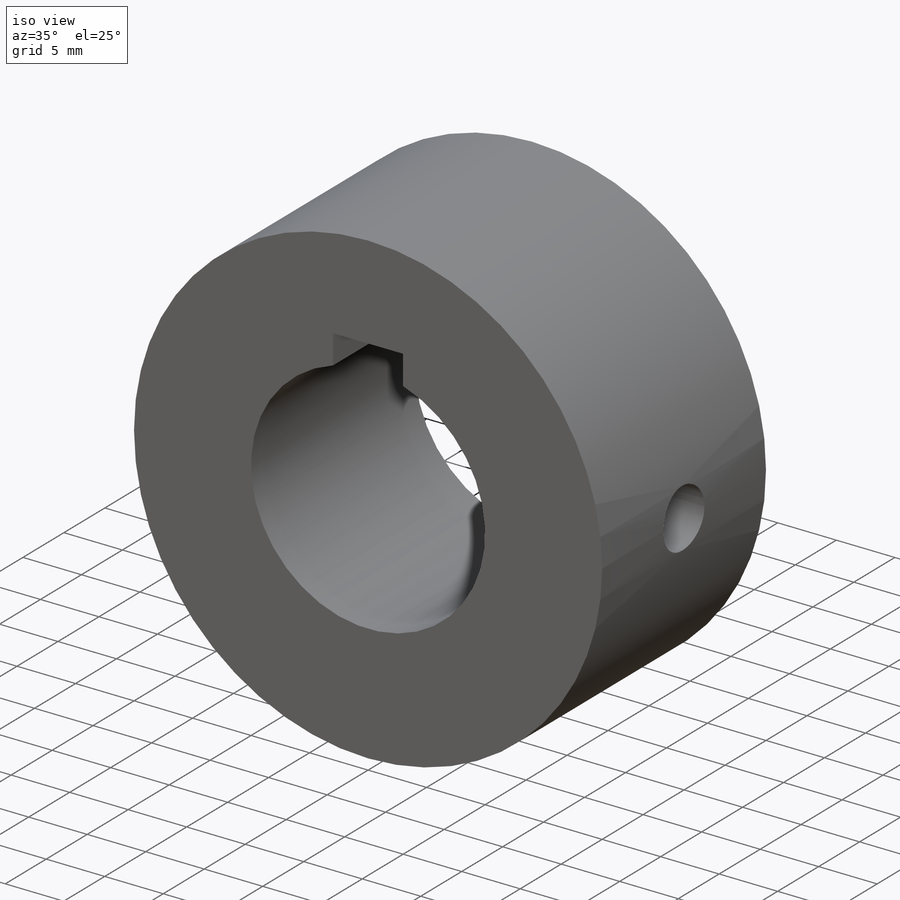
[diagram: iso view]
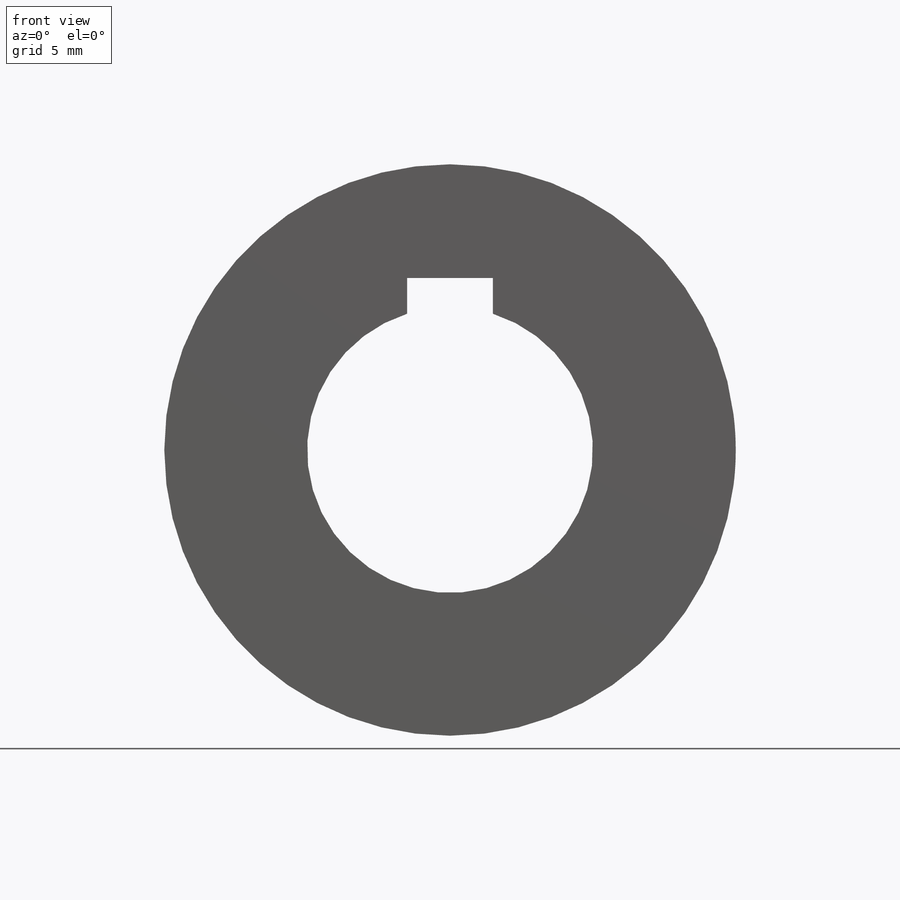
[diagram: front view]
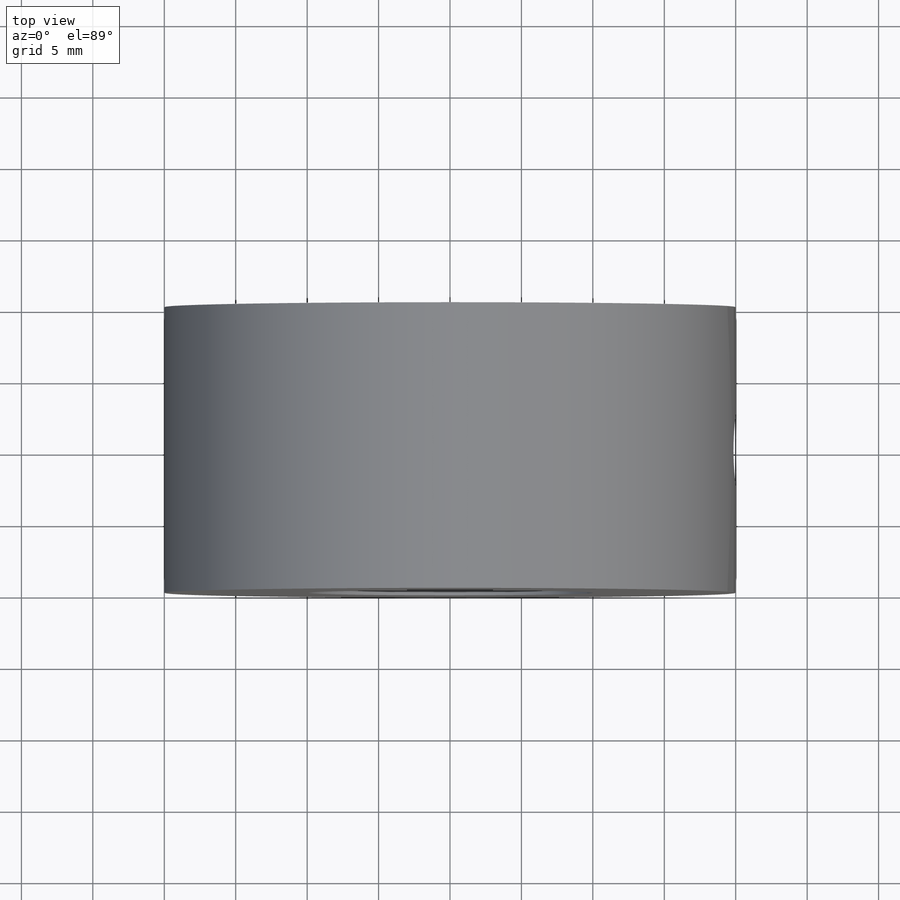
[diagram: top view]
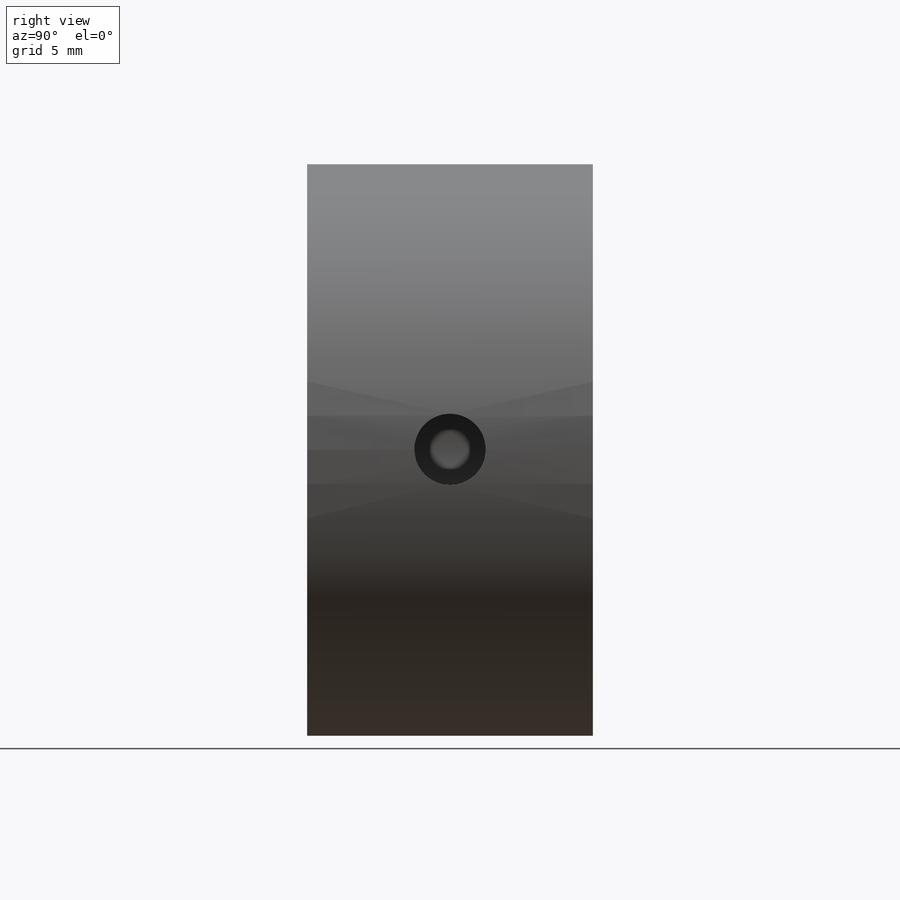
[diagram: right view]
SOLIDWORKS PART (.sldprt)
format: sldprt  version: not decoded by parser v0  size: 203,264 bytes
history: native  units: mm
features: sketch x4, plane x3, material x1, extrude x1, hole x1, thread x1, cut_extrude x1 (+10 scaffold rows collapsed)
feature tree (22):
  scaffold x10  (default folders/planes/origin — collapsed)
  material  "Matériau <non spécifié>"
  plane  "Plan de face"
  plane  "Plan de dessus"
  plane  "Plan de droite"
  sketch  "Esquisse1"  dims[D1=40.0mm D2=16.0mm]
  extrude  "Boss.-Extru.1"  Depth=20mm
  hole  "Trou taraudé M61"  Diameter=5mm Depth=17mm
  sketch  "Esquisse3D1"  dims[D1=10.0mm]
  sketch  "Esquisse10"  dims[hole-wizard template sketch: 46 standard entries collapsed; hole parameters kept: c15.Diamètre du trou pour taraudage=5.0mm c15.Profondeur du trou pour taraudage=17.0mm c15.D3=~14.816244mm c15.Angle de pointe=118.0deg]
  thread  "Filetage de perçage1"  Diameter=10.317542mm  [1 undecoded]
  sketch  "Esquisse11"  dims[c1.D2=~5.734638mm c2.D2=10.0mm c2.D1=6.0mm c3.D2=~0.651761mm c3.D3=3.0mm c3.D4=2.5mm]
  cut_extrude  "Enlèv. mat.-Extru.1"  Depth=25mm
decode coverage: 8 of 8 modeling features carry decoded parameters
note: ~ marks probable driven/reference dimensions
note: 1 parameter value undecoded
note: suppression state not decoded; provenance and decode notes live in map.json
